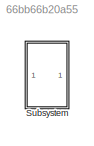
MODEL slx_66bb66b20a55
KIND model
CONFIG AbsTol = auto
CONFIG EnableMultiTasking = off
CONFIG FixedStep = auto
CONFIG MaxStep = auto
CONFIG MinStep = auto
CONFIG RelTol = 1e-3
CONFIG SampleTimeConstraint = Unconstrained
CONFIG SolverName = VariableStepAuto
CONFIG StartTime = 0.0
CONFIG StopTime = 10.0
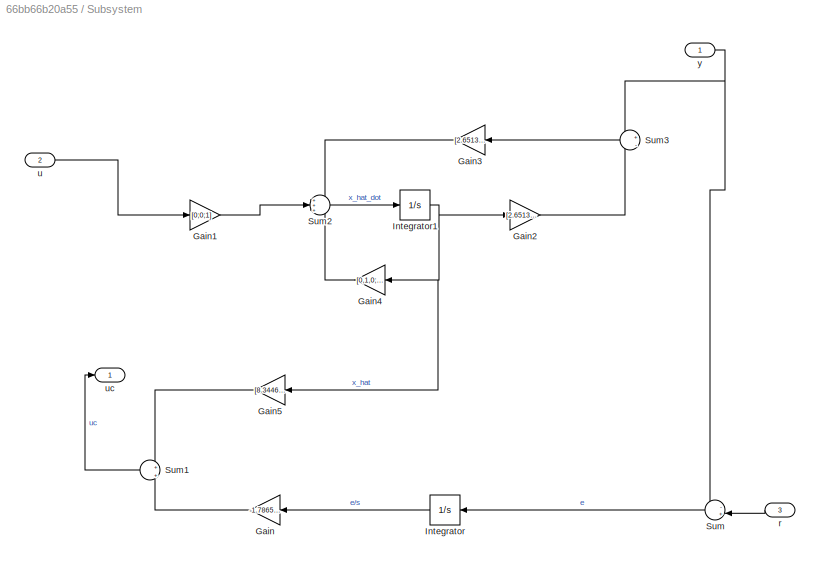
BLOCK [SubSystem] Subsystem
BLOCK [Gain] Subsystem/Gain
  Gain = -1.786575731001334e+02
  Multiplication = Matrix(K*u)
BLOCK [Gain] Subsystem/Gain1
  Gain = [0;0;1]
  Multiplication = Matrix(K*u)
BLOCK [Gain] Subsystem/Gain2
  Gain = [2.651351351351351,0,0]
  Multiplication = Matrix(K*u)
BLOCK [Gain] Subsystem/Gain3
  Gain = [2.651351351351351,0,0]
  Multiplication = Matrix(K*u)
BLOCK [Gain] Subsystem/Gain4
  Gain = [0,1,0;0,0,1;0,-2.651351351351351,0]
  Multiplication = Matrix(K*u)
BLOCK [Gain] Subsystem/Gain5
  Gain = [8.344642148564543e+02,3.081129663116928e+02,1.833158009482345e+02]
  Multiplication = Matrix(K*u)
BLOCK [Integrator] Subsystem/Integrator
BLOCK [Integrator] Subsystem/Integrator1
BLOCK [Sum] Subsystem/Sum
  Inputs = -+|
  NameLocation = top
BLOCK [Sum] Subsystem/Sum1
  Inputs = +|+
BLOCK [Sum] Subsystem/Sum2
  Inputs = +++
BLOCK [Sum] Subsystem/Sum3
  Inputs = +|-
BLOCK [Inport] Subsystem/r
  Port = 3
BLOCK [Inport] Subsystem/u
  Port = 2
BLOCK [Outport] Subsystem/uc
BLOCK [Inport] Subsystem/y
LINE Subsystem/Gain1:1 -> Subsystem/Sum2:2
LINE Subsystem/Gain2:1 -> Subsystem/Sum3:2
LINE Subsystem/Gain3:1 -> Subsystem/Sum2:1
LINE Subsystem/Gain4:1 -> Subsystem/Sum2:3
LINE Subsystem/Gain5:1 -> Subsystem/Sum1:1
LINE Subsystem/Gain:1 -> Subsystem/Sum1:2
NET Subsystem/Integrator1:1 -> Subsystem/Gain2:1, Subsystem/Gain4:1, Subsystem/Gain5:1
LINE Subsystem/Integrator:1 -> Subsystem/Gain:1
LINE Subsystem/Sum1:1 -> Subsystem/uc:1
LINE Subsystem/Sum2:1 -> Subsystem/Integrator1:1
LINE Subsystem/Sum3:1 -> Subsystem/Gain3:1
LINE Subsystem/Sum:1 -> Subsystem/Integrator:1
LINE Subsystem/r:1 -> Subsystem/Sum:2
LINE Subsystem/u:1 -> Subsystem/Gain1:1
NET Subsystem/y:1 -> Subsystem/Sum3:1, Subsystem/Sum:1
note: NET lines group one-source signal fan-out (src -> all destinations, sorted); 1:1 wires keep LINE
